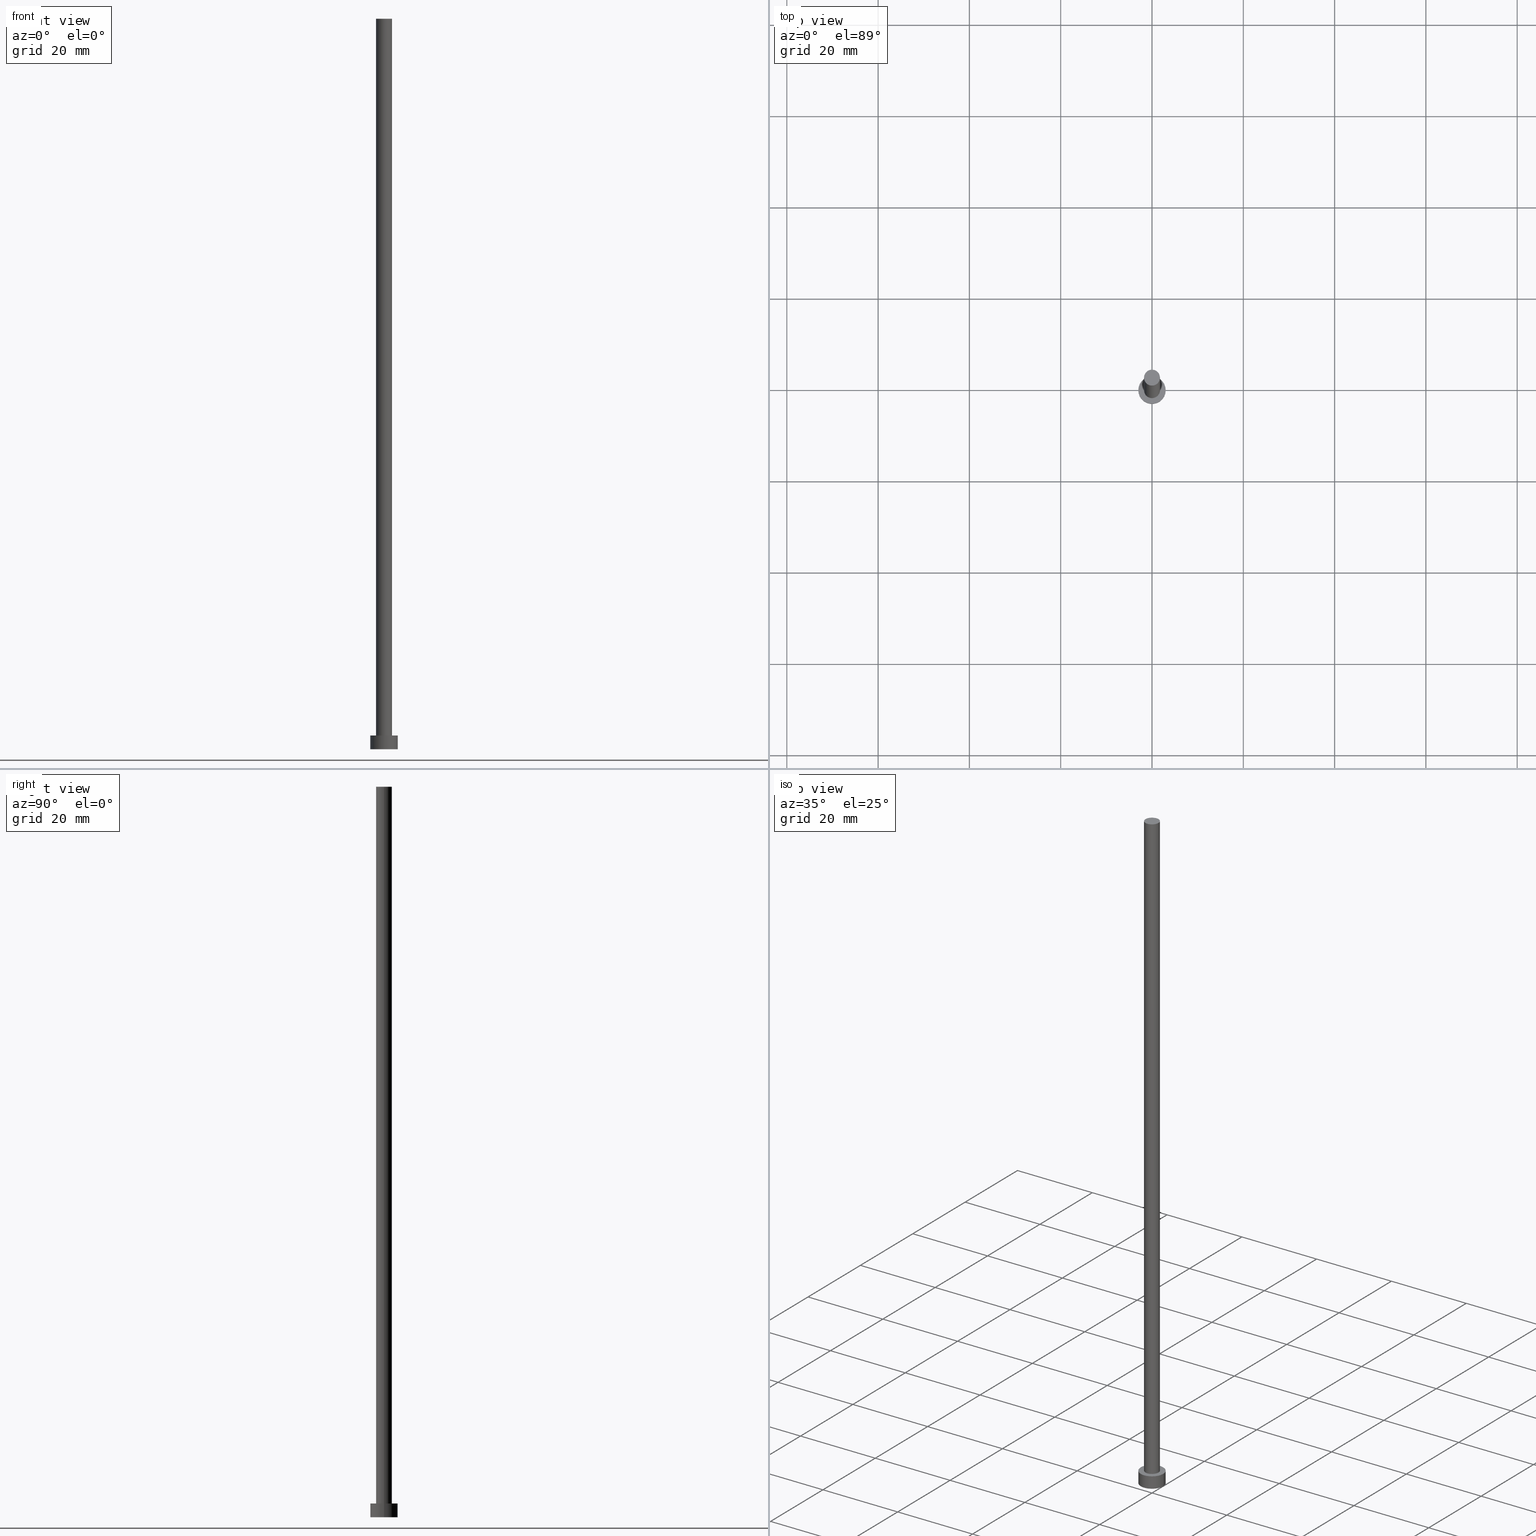
[diagram: canonical four-view strip — front | top / right | iso, engineering-drawing reading convention]
A machine part, canonical four-view strip (front | top / right | iso — engineering-drawing reading convention). The complete STEP part file that produces these views, byte-faithful:
ISO-10303-21;
HEADER;
FILE_DESCRIPTION (( 'STEP AP203' ),
    '1' );
FILE_NAME ('8013.STEP',
    '2023-02-13T16:51:07',
    ( '' ),
    ( '' ),
    'SwSTEP 2.0',
    'SolidWorks 2019',
    '' );
FILE_SCHEMA (( 'CONFIG_CONTROL_DESIGN' ));
ENDSEC;

DATA;
#1 = DIRECTION ( 'NONE',  ( 1.000000000000000000, 0.000000000000000000, -0.000000000000000000 ) ) ;
#2 = DIRECTION ( 'NONE',  ( -0.000000000000000000, -0.000000000000000000, -1.000000000000000000 ) ) ;
#3 = EDGE_CURVE ( 'NONE', #169, #50, #123, .T. ) ;
#4 = CARTESIAN_POINT ( 'NONE',  ( -1.750000000000000000, 0.000000000000000000, 160.0000000000000000 ) ) ;
#5 = PRODUCT_RELATED_PRODUCT_CATEGORY ( 'detail', '', ( #146 ) ) ;
#6 = CARTESIAN_POINT ( 'NONE',  ( -3.000000000000000444, 0.000000000000000000, 3.000000000000000000 ) ) ;
#7 = EDGE_LOOP ( 'NONE', ( #63, #181 ) ) ;
#8 = DIRECTION ( 'NONE',  ( -1.000000000000000000, 0.000000000000000000, 0.000000000000000000 ) ) ;
#9 = CALENDAR_DATE ( 2023, 13, 2 ) ;
#10 = AXIS2_PLACEMENT_3D ( 'NONE', #111, #222, #201 ) ;
#11 = ADVANCED_BREP_SHAPE_REPRESENTATION ( '8013', ( #246, #10 ), #76 ) ;
#12 = CALENDAR_DATE ( 2023, 13, 2 ) ;
#13 = EDGE_CURVE ( 'NONE', #179, #231, #34, .T. ) ;
#14 = FACE_OUTER_BOUND ( 'NONE', #88, .T. ) ;
#15 = DATE_TIME_ROLE ( 'creation_date' ) ;
#16 = DIRECTION ( 'NONE',  ( -1.000000000000000000, 0.000000000000000000, 0.000000000000000000 ) ) ;
#17 = DATE_TIME_ROLE ( 'classification_date' ) ;
#18 = CARTESIAN_POINT ( 'NONE',  ( 1.750000000000000000, 2.143131898507868297E-16, 160.0000000000000000 ) ) ;
#19 = CYLINDRICAL_SURFACE ( 'NONE', #56, 3.000000000000000444 ) ;
#20 = EDGE_LOOP ( 'NONE', ( #175, #196 ) ) ;
#21 = DIRECTION ( 'NONE',  ( 0.000000000000000000, 0.000000000000000000, 1.000000000000000000 ) ) ;
#22 = DIRECTION ( 'NONE',  ( 0.000000000000000000, 0.000000000000000000, 1.000000000000000000 ) ) ;
#23 = EDGE_CURVE ( 'NONE', #179, #252, #132, .T. ) ;
#24 = DIRECTION ( 'NONE',  ( 1.000000000000000000, 0.000000000000000000, 0.000000000000000000 ) ) ;
#25 = AXIS2_PLACEMENT_3D ( 'NONE', #228, #22, #47 ) ;
#26 = LOCAL_TIME ( 17, 51, 7.000000000000000000, #209 ) ;
#27 = ORIENTED_EDGE ( 'NONE', *, *, #245, .F. ) ;
#28 = CC_DESIGN_APPROVAL ( #171, ( #185 ) ) ;
#29 = EDGE_LOOP ( 'NONE', ( #40, #254, #187, #77 ) ) ;
#30 = PERSON_AND_ORGANIZATION ( #167, #160 ) ;
#31 = COORDINATED_UNIVERSAL_TIME_OFFSET ( 1, 0, .AHEAD. ) ;
#32 = PERSON_AND_ORGANIZATION ( #167, #160 ) ;
#33 = EDGE_CURVE ( 'NONE', #252, #179, #86, .T. ) ;
#34 = LINE ( 'NONE', #18, #109 ) ;
#35 = PERSON_AND_ORGANIZATION_ROLE ( 'creator' ) ;
#36 = APPROVAL ( #193, 'NEUR�EN�' ) ;
#37 = ORIENTED_EDGE ( 'NONE', *, *, #207, .T. ) ;
#38 = DIRECTION ( 'NONE',  ( 1.000000000000000000, 0.000000000000000000, 0.000000000000000000 ) ) ;
#39 = ADVANCED_FACE ( 'NONE', ( #237 ), #236, .T. ) ;
#40 = ORIENTED_EDGE ( 'NONE', *, *, #23, .F. ) ;
#41 = ORIENTED_EDGE ( 'NONE', *, *, #44, .F. ) ;
#42 = MECHANICAL_CONTEXT ( 'NONE', #203, 'mechanical' ) ;
#43 = CC_DESIGN_APPROVAL ( #205, ( #99 ) ) ;
#44 = EDGE_CURVE ( 'NONE', #169, #198, #230, .T. ) ;
#45 = AXIS2_PLACEMENT_3D ( 'NONE', #214, #199, #16 ) ;
#46 = CARTESIAN_POINT ( 'NONE',  ( 0.000000000000000000, 0.000000000000000000, 3.000000000000000000 ) ) ;
#47 = DIRECTION ( 'NONE',  ( 1.000000000000000000, 0.000000000000000000, 0.000000000000000000 ) ) ;
#48 = CIRCLE ( 'NONE', #249, 3.000000000000000444 ) ;
#49 = AXIS2_PLACEMENT_3D ( 'NONE', #81, #221, #200 ) ;
#50 = VERTEX_POINT ( 'NONE', #195 ) ;
#51 = CARTESIAN_POINT ( 'NONE',  ( 0.000000000000000000, 0.000000000000000000, 0.000000000000000000 ) ) ;
#52 = CC_DESIGN_PERSON_AND_ORGANIZATION_ASSIGNMENT ( #115, #119, ( #99 ) ) ;
#53 = DATE_AND_TIME ( #12, #210 ) ;
#54 = DATE_AND_TIME ( #96, #219 ) ;
#55 = ORIENTED_EDGE ( 'NONE', *, *, #3, .F. ) ;
#56 = AXIS2_PLACEMENT_3D ( 'NONE', #135, #120, #212 ) ;
#57 = CARTESIAN_POINT ( 'NONE',  ( 0.000000000000000000, 0.000000000000000000, 160.0000000000000000 ) ) ;
#58 = APPROVAL_DATE_TIME ( #176, #171 ) ;
#59 = DIRECTION ( 'NONE',  ( 1.000000000000000000, 0.000000000000000000, 0.000000000000000000 ) ) ;
#60 = CARTESIAN_POINT ( 'NONE',  ( 3.000000000000000444, 3.673940397442060361E-16, 3.000000000000000000 ) ) ;
#61 = AXIS2_PLACEMENT_3D ( 'NONE', #64, #232, #8 ) ;
#62 = CC_DESIGN_APPROVAL ( #36, ( #70 ) ) ;
#63 = ORIENTED_EDGE ( 'NONE', *, *, #140, .F. ) ;
#64 = CARTESIAN_POINT ( 'NONE',  ( 0.000000000000000000, 0.000000000000000000, 3.000000000000000000 ) ) ;
#65 = ADVANCED_FACE ( 'NONE', ( #161 ), #19, .T. ) ;
#66 = APPLICATION_PROTOCOL_DEFINITION ( 'international standard', 'config_control_design', 1994, #203 ) ;
#67 = CARTESIAN_POINT ( 'NONE',  ( 1.750000000000000000, 2.143131898507868297E-16, 160.0000000000000000 ) ) ;
#68 =( NAMED_UNIT ( * ) PLANE_ANGLE_UNIT ( ) SI_UNIT ( $, .RADIAN. ) );
#69 = CC_DESIGN_DATE_AND_TIME_ASSIGNMENT ( #133, #17, ( #70 ) ) ;
#70 = SECURITY_CLASSIFICATION ( '', '', #247 ) ;
#71 = ADVANCED_FACE ( 'NONE', ( #158, #14 ), #156, .T. ) ;
#72 = ORIENTED_EDGE ( 'NONE', *, *, #44, .T. ) ;
#73 = PERSON_AND_ORGANIZATION_ROLE ( 'classification_officer' ) ;
#74 = CALENDAR_DATE ( 2023, 13, 2 ) ;
#75 = APPROVAL_ROLE ( '' ) ;
#76 =( GEOMETRIC_REPRESENTATION_CONTEXT ( 3 ) GLOBAL_UNCERTAINTY_ASSIGNED_CONTEXT ( ( #92 ) ) GLOBAL_UNIT_ASSIGNED_CONTEXT ( ( #90, #68, #229 ) ) REPRESENTATION_CONTEXT ( 'NONE', 'WORKASPACE' ) );
#77 = ORIENTED_EDGE ( 'NONE', *, *, #107, .F. ) ;
#78 = AXIS2_PLACEMENT_3D ( 'NONE', #51, #21, #225 ) ;
#79 = CARTESIAN_POINT ( 'NONE',  ( 0.000000000000000000, 0.000000000000000000, 3.000000000000000000 ) ) ;
#80 = CIRCLE ( 'NONE', #25, 1.750000000000000000 ) ;
#81 = CARTESIAN_POINT ( 'NONE',  ( 0.000000000000000000, 0.000000000000000000, 160.0000000000000000 ) ) ;
#82 = DIRECTION ( 'NONE',  ( -0.000000000000000000, -0.000000000000000000, -1.000000000000000000 ) ) ;
#83 = DIRECTION ( 'NONE',  ( 0.000000000000000000, 0.000000000000000000, 1.000000000000000000 ) ) ;
#84 = LINE ( 'NONE', #106, #226 ) ;
#85 = ADVANCED_FACE ( 'NONE', ( #220 ), #235, .T. ) ;
#86 = CIRCLE ( 'NONE', #49, 1.750000000000000000 ) ;
#87 = ADVANCED_FACE ( 'NONE', ( #98 ), #177, .F. ) ;
#88 = EDGE_LOOP ( 'NONE', ( #37, #72 ) ) ;
#89 = ORIENTED_EDGE ( 'NONE', *, *, #3, .T. ) ;
#90 =( LENGTH_UNIT ( ) NAMED_UNIT ( * ) SI_UNIT ( .MILLI., .METRE. ) );
#91 = EDGE_CURVE ( 'NONE', #50, #217, #188, .T. ) ;
#92 = UNCERTAINTY_MEASURE_WITH_UNIT (LENGTH_MEASURE( 1.000000000000000082E-05 ), #90, 'distance_accuracy_value', 'NONE');
#93 = APPROVAL_ROLE ( '' ) ;
#94 = SHAPE_DEFINITION_REPRESENTATION ( #206, #11 ) ;
#95 = VERTEX_POINT ( 'NONE', #182 ) ;
#96 = CALENDAR_DATE ( 2023, 13, 2 ) ;
#97 = CIRCLE ( 'NONE', #223, 1.750000000000000000 ) ;
#98 = FACE_OUTER_BOUND ( 'NONE', #7, .T. ) ;
#99 = PRODUCT_DEFINITION ( 'NEZN�M�', '', #185, #122 ) ;
#100 = ORIENTED_EDGE ( 'NONE', *, *, #33, .T. ) ;
#101 = DIRECTION ( 'NONE',  ( -0.000000000000000000, -0.000000000000000000, -1.000000000000000000 ) ) ;
#102 = ORIENTED_EDGE ( 'NONE', *, *, #148, .T. ) ;
#103 = APPROVAL_PERSON_ORGANIZATION ( #30, #36, #152 ) ;
#104 = LINE ( 'NONE', #6, #208 ) ;
#105 = CC_DESIGN_PERSON_AND_ORGANIZATION_ASSIGNMENT ( #172, #73, ( #70 ) ) ;
#106 = CARTESIAN_POINT ( 'NONE',  ( -1.750000000000000000, 0.000000000000000000, 160.0000000000000000 ) ) ;
#107 = EDGE_CURVE ( 'NONE', #252, #95, #84, .T. ) ;
#108 = AXIS2_PLACEMENT_3D ( 'NONE', #126, #166, #1 ) ;
#109 = VECTOR ( 'NONE', #138, 1000.000000000000000 ) ;
#110 = ORIENTED_EDGE ( 'NONE', *, *, #207, .F. ) ;
#111 = CARTESIAN_POINT ( 'NONE',  ( 0.000000000000000000, 0.000000000000000000, 0.000000000000000000 ) ) ;
#112 = PERSON_AND_ORGANIZATION_ROLE ( 'design_supplier' ) ;
#113 = LOCAL_TIME ( 17, 51, 7.000000000000000000, #211 ) ;
#114 = APPLICATION_CONTEXT ( 'configuration controlled 3d designs of mechanical parts and assemblies' ) ;
#115 = PERSON_AND_ORGANIZATION ( #167, #160 ) ;
#116 = EDGE_LOOP ( 'NONE', ( #141, #248, #251, #102 ) ) ;
#117 = APPROVAL_DATE_TIME ( #53, #36 ) ;
#118 = DIRECTION ( 'NONE',  ( 1.000000000000000000, 0.000000000000000000, -0.000000000000000000 ) ) ;
#119 = PERSON_AND_ORGANIZATION_ROLE ( 'creator' ) ;
#120 = DIRECTION ( 'NONE',  ( -0.000000000000000000, -0.000000000000000000, -1.000000000000000000 ) ) ;
#121 = DIRECTION ( 'NONE',  ( 0.000000000000000000, 0.000000000000000000, 1.000000000000000000 ) ) ;
#122 = DESIGN_CONTEXT ( 'detailed design', #114, 'design' ) ;
#123 = LINE ( 'NONE', #60, #243 ) ;
#124 = DIRECTION ( 'NONE',  ( 1.000000000000000000, 0.000000000000000000, 0.000000000000000000 ) ) ;
#125 = AXIS2_PLACEMENT_3D ( 'NONE', #79, #137, #59 ) ;
#126 = CARTESIAN_POINT ( 'NONE',  ( 0.000000000000000000, 0.000000000000000000, 160.0000000000000000 ) ) ;
#127 = CARTESIAN_POINT ( 'NONE',  ( 0.000000000000000000, 0.000000000000000000, 0.000000000000000000 ) ) ;
#128 = CC_DESIGN_PERSON_AND_ORGANIZATION_ASSIGNMENT ( #192, #112, ( #185 ) ) ;
#129 = AXIS2_PLACEMENT_3D ( 'NONE', #57, #157, #38 ) ;
#130 = EDGE_LOOP ( 'NONE', ( #100, #234 ) ) ;
#131 = CARTESIAN_POINT ( 'NONE',  ( -3.000000000000000444, 0.000000000000000000, 0.000000000000000000 ) ) ;
#132 = CIRCLE ( 'NONE', #129, 1.750000000000000000 ) ;
#133 = DATE_AND_TIME ( #74, #26 ) ;
#134 = APPROVAL_STATUS ( 'not_yet_approved' ) ;
#135 = CARTESIAN_POINT ( 'NONE',  ( 0.000000000000000000, 0.000000000000000000, 3.000000000000000000 ) ) ;
#136 = PERSON_AND_ORGANIZATION ( #167, #160 ) ;
#137 = DIRECTION ( 'NONE',  ( 0.000000000000000000, 0.000000000000000000, 1.000000000000000000 ) ) ;
#138 = DIRECTION ( 'NONE',  ( -0.000000000000000000, -0.000000000000000000, -1.000000000000000000 ) ) ;
#139 = CARTESIAN_POINT ( 'NONE',  ( 0.000000000000000000, 0.000000000000000000, 3.000000000000000000 ) ) ;
#140 = EDGE_CURVE ( 'NONE', #217, #50, #218, .T. ) ;
#141 = ORIENTED_EDGE ( 'NONE', *, *, #13, .F. ) ;
#142 = DIRECTION ( 'NONE',  ( 1.000000000000000000, 0.000000000000000000, 0.000000000000000000 ) ) ;
#143 = AXIS2_PLACEMENT_3D ( 'NONE', #178, #82, #162 ) ;
#144 = CC_DESIGN_PERSON_AND_ORGANIZATION_ASSIGNMENT ( #32, #154, ( #146 ) ) ;
#145 = CYLINDRICAL_SURFACE ( 'NONE', #61, 3.000000000000000444 ) ;
#146 = PRODUCT ( '8013', '8013', '', ( #42 ) ) ;
#147 = FACE_OUTER_BOUND ( 'NONE', #130, .T. ) ;
#148 = EDGE_CURVE ( 'NONE', #95, #231, #97, .T. ) ;
#149 = EDGE_LOOP ( 'NONE', ( #41, #89, #255, #27 ) ) ;
#150 = CC_DESIGN_SECURITY_CLASSIFICATION ( #70, ( #185 ) ) ;
#151 = DATE_AND_TIME ( #9, #180 ) ;
#152 = APPROVAL_ROLE ( '' ) ;
#153 = ORIENTED_EDGE ( 'NONE', *, *, #140, .T. ) ;
#154 = PERSON_AND_ORGANIZATION_ROLE ( 'design_owner' ) ;
#155 = AXIS2_PLACEMENT_3D ( 'NONE', #127, #164, #186 ) ;
#156 = PLANE ( 'NONE',  #168 ) ;
#157 = DIRECTION ( 'NONE',  ( 0.000000000000000000, 0.000000000000000000, 1.000000000000000000 ) ) ;
#158 = FACE_BOUND ( 'NONE', #20, .T. ) ;
#159 = AXIS2_PLACEMENT_3D ( 'NONE', #204, #242, #24 ) ;
#160 = ORGANIZATION ( 'NEUR�EN�', 'NEUR�EN�', '' ) ;
#161 = FACE_OUTER_BOUND ( 'NONE', #239, .T. ) ;
#162 = DIRECTION ( 'NONE',  ( -1.000000000000000000, 0.000000000000000000, 0.000000000000000000 ) ) ;
#163 = DIRECTION ( 'NONE',  ( -0.000000000000000000, -0.000000000000000000, -1.000000000000000000 ) ) ;
#164 = DIRECTION ( 'NONE',  ( 0.000000000000000000, 0.000000000000000000, 1.000000000000000000 ) ) ;
#165 = APPROVAL_PERSON_ORGANIZATION ( #213, #205, #75 ) ;
#166 = DIRECTION ( 'NONE',  ( 0.000000000000000000, 0.000000000000000000, 1.000000000000000000 ) ) ;
#167 = PERSON ( 'NEUR�EN�', 'NEUR�EN�', 'NEUR�EN�', ('NEUR�EN�'), ('NEUR�EN�'), ('NEUR�EN�') ) ;
#168 = AXIS2_PLACEMENT_3D ( 'NONE', #139, #121, #118 ) ;
#169 = VERTEX_POINT ( 'NONE', #183 ) ;
#170 = CARTESIAN_POINT ( 'NONE',  ( -3.000000000000000444, 0.000000000000000000, 3.000000000000000000 ) ) ;
#171 = APPROVAL ( #134, 'NEUR�EN�' ) ;
#172 = PERSON_AND_ORGANIZATION ( #167, #160 ) ;
#173 = APPROVAL_DATE_TIME ( #54, #205 ) ;
#174 = APPLICATION_PROTOCOL_DEFINITION ( 'international standard', 'config_control_design', 1994, #114 ) ;
#175 = ORIENTED_EDGE ( 'NONE', *, *, #148, .F. ) ;
#176 = DATE_AND_TIME ( #250, #113 ) ;
#177 = PLANE ( 'NONE',  #155 ) ;
#178 = CARTESIAN_POINT ( 'NONE',  ( 0.000000000000000000, 0.000000000000000000, 160.0000000000000000 ) ) ;
#179 = VERTEX_POINT ( 'NONE', #67 ) ;
#180 = LOCAL_TIME ( 17, 51, 7.000000000000000000, #31 ) ;
#181 = ORIENTED_EDGE ( 'NONE', *, *, #91, .F. ) ;
#182 = CARTESIAN_POINT ( 'NONE',  ( -1.750000000000000000, 0.000000000000000000, 3.000000000000000000 ) ) ;
#183 = CARTESIAN_POINT ( 'NONE',  ( 3.000000000000000444, 3.673940397442060361E-16, 3.000000000000000000 ) ) ;
#184 = CARTESIAN_POINT ( 'NONE',  ( 1.750000000000000000, 2.143131898507868297E-16, 3.000000000000000000 ) ) ;
#185 = PRODUCT_DEFINITION_FORMATION_WITH_SPECIFIED_SOURCE ( 'LIBOVOLN�', '', #146, .NOT_KNOWN. ) ;
#186 = DIRECTION ( 'NONE',  ( 1.000000000000000000, 0.000000000000000000, -0.000000000000000000 ) ) ;
#187 = ORIENTED_EDGE ( 'NONE', *, *, #244, .T. ) ;
#188 = CIRCLE ( 'NONE', #78, 3.000000000000000444 ) ;
#189 = ADVANCED_FACE ( 'NONE', ( #147 ), #240, .T. ) ;
#190 = ORIENTED_EDGE ( 'NONE', *, *, #245, .T. ) ;
#191 = FACE_OUTER_BOUND ( 'NONE', #149, .T. ) ;
#192 = PERSON_AND_ORGANIZATION ( #167, #160 ) ;
#193 = APPROVAL_STATUS ( 'not_yet_approved' ) ;
#194 = COORDINATED_UNIVERSAL_TIME_OFFSET ( 1, 0, .AHEAD. ) ;
#195 = CARTESIAN_POINT ( 'NONE',  ( 3.000000000000000444, 3.673940397442060361E-16, 0.000000000000000000 ) ) ;
#196 = ORIENTED_EDGE ( 'NONE', *, *, #244, .F. ) ;
#197 = APPROVAL_STATUS ( 'not_yet_approved' ) ;
#198 = VERTEX_POINT ( 'NONE', #170 ) ;
#199 = DIRECTION ( 'NONE',  ( -0.000000000000000000, -0.000000000000000000, -1.000000000000000000 ) ) ;
#200 = DIRECTION ( 'NONE',  ( 1.000000000000000000, 0.000000000000000000, 0.000000000000000000 ) ) ;
#201 = DIRECTION ( 'NONE',  ( 1.000000000000000000, 0.000000000000000000, 0.000000000000000000 ) ) ;
#202 = DIRECTION ( 'NONE',  ( 0.000000000000000000, 0.000000000000000000, 1.000000000000000000 ) ) ;
#203 = APPLICATION_CONTEXT ( 'configuration controlled 3d designs of mechanical parts and assemblies' ) ;
#204 = CARTESIAN_POINT ( 'NONE',  ( 0.000000000000000000, 0.000000000000000000, 0.000000000000000000 ) ) ;
#205 = APPROVAL ( #197, 'NEUR�EN�' ) ;
#206 = PRODUCT_DEFINITION_SHAPE ( 'NONE', 'NONE',  #99 ) ;
#207 = EDGE_CURVE ( 'NONE', #198, #169, #48, .T. ) ;
#208 = VECTOR ( 'NONE', #163, 1000.000000000000000 ) ;
#209 = COORDINATED_UNIVERSAL_TIME_OFFSET ( 1, 0, .AHEAD. ) ;
#210 = LOCAL_TIME ( 17, 51, 7.000000000000000000, #194 ) ;
#211 = COORDINATED_UNIVERSAL_TIME_OFFSET ( 1, 0, .AHEAD. ) ;
#212 = DIRECTION ( 'NONE',  ( -1.000000000000000000, 0.000000000000000000, 0.000000000000000000 ) ) ;
#213 = PERSON_AND_ORGANIZATION ( #167, #160 ) ;
#214 = CARTESIAN_POINT ( 'NONE',  ( 0.000000000000000000, 0.000000000000000000, 160.0000000000000000 ) ) ;
#215 = COORDINATED_UNIVERSAL_TIME_OFFSET ( 1, 0, .AHEAD. ) ;
#216 = CC_DESIGN_DATE_AND_TIME_ASSIGNMENT ( #151, #15, ( #99 ) ) ;
#217 = VERTEX_POINT ( 'NONE', #131 ) ;
#218 = CIRCLE ( 'NONE', #159, 3.000000000000000444 ) ;
#219 = LOCAL_TIME ( 17, 51, 7.000000000000000000, #215 ) ;
#220 = FACE_OUTER_BOUND ( 'NONE', #29, .T. ) ;
#221 = DIRECTION ( 'NONE',  ( 0.000000000000000000, 0.000000000000000000, 1.000000000000000000 ) ) ;
#222 = DIRECTION ( 'NONE',  ( 0.000000000000000000, 0.000000000000000000, 1.000000000000000000 ) ) ;
#223 = AXIS2_PLACEMENT_3D ( 'NONE', #241, #83, #124 ) ;
#224 = APPROVAL_PERSON_ORGANIZATION ( #233, #171, #93 ) ;
#225 = DIRECTION ( 'NONE',  ( 1.000000000000000000, 0.000000000000000000, 0.000000000000000000 ) ) ;
#226 = VECTOR ( 'NONE', #2, 1000.000000000000000 ) ;
#227 = ADVANCED_FACE ( 'NONE', ( #191 ), #145, .T. ) ;
#228 = CARTESIAN_POINT ( 'NONE',  ( 0.000000000000000000, 0.000000000000000000, 3.000000000000000000 ) ) ;
#229 =( NAMED_UNIT ( * ) SI_UNIT ( $, .STERADIAN. ) SOLID_ANGLE_UNIT ( ) );
#230 = CIRCLE ( 'NONE', #125, 3.000000000000000444 ) ;
#231 = VERTEX_POINT ( 'NONE', #184 ) ;
#232 = DIRECTION ( 'NONE',  ( -0.000000000000000000, -0.000000000000000000, -1.000000000000000000 ) ) ;
#233 = PERSON_AND_ORGANIZATION ( #167, #160 ) ;
#234 = ORIENTED_EDGE ( 'NONE', *, *, #23, .T. ) ;
#235 = CYLINDRICAL_SURFACE ( 'NONE', #45, 1.750000000000000000 ) ;
#236 = CYLINDRICAL_SURFACE ( 'NONE', #143, 1.750000000000000000 ) ;
#237 = FACE_OUTER_BOUND ( 'NONE', #116, .T. ) ;
#238 = CLOSED_SHELL ( 'NONE', ( #85, #227, #65, #71, #87, #39, #189 ) ) ;
#239 = EDGE_LOOP ( 'NONE', ( #55, #110, #190, #153 ) ) ;
#240 = PLANE ( 'NONE',  #108 ) ;
#241 = CARTESIAN_POINT ( 'NONE',  ( 0.000000000000000000, 0.000000000000000000, 3.000000000000000000 ) ) ;
#242 = DIRECTION ( 'NONE',  ( 0.000000000000000000, 0.000000000000000000, 1.000000000000000000 ) ) ;
#243 = VECTOR ( 'NONE', #101, 1000.000000000000000 ) ;
#244 = EDGE_CURVE ( 'NONE', #231, #95, #80, .T. ) ;
#245 = EDGE_CURVE ( 'NONE', #198, #217, #104, .T. ) ;
#246 = MANIFOLD_SOLID_BREP ( 'P�idat vysunut�m3', #238 ) ;
#247 = SECURITY_CLASSIFICATION_LEVEL ( 'unclassified' ) ;
#248 = ORIENTED_EDGE ( 'NONE', *, *, #33, .F. ) ;
#249 = AXIS2_PLACEMENT_3D ( 'NONE', #46, #202, #142 ) ;
#250 = CALENDAR_DATE ( 2023, 13, 2 ) ;
#251 = ORIENTED_EDGE ( 'NONE', *, *, #107, .T. ) ;
#252 = VERTEX_POINT ( 'NONE', #4 ) ;
#253 = CC_DESIGN_PERSON_AND_ORGANIZATION_ASSIGNMENT ( #136, #35, ( #185 ) ) ;
#254 = ORIENTED_EDGE ( 'NONE', *, *, #13, .T. ) ;
#255 = ORIENTED_EDGE ( 'NONE', *, *, #91, .T. ) ;
ENDSEC;
END-ISO-10303-21;
